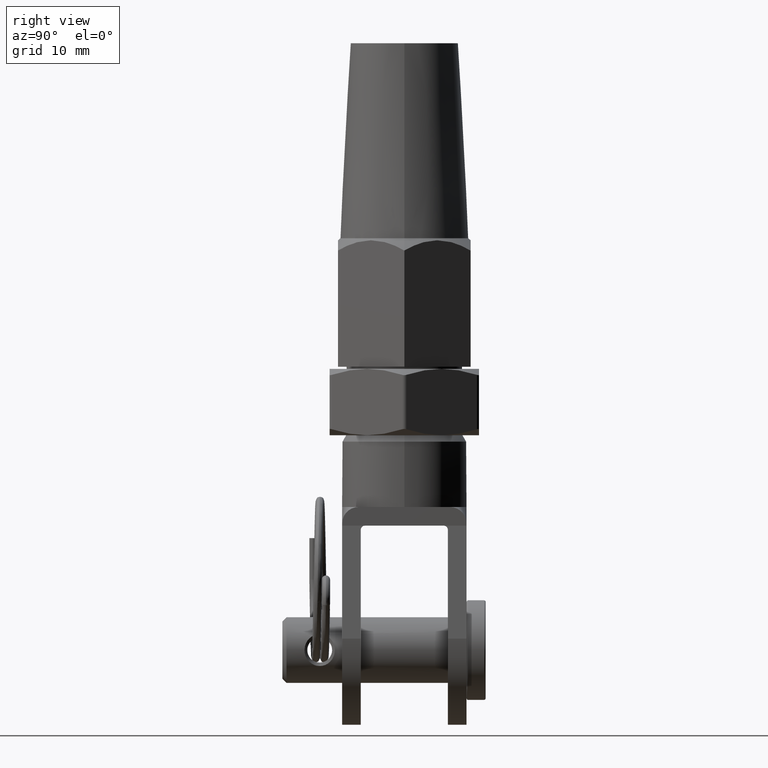
[diagram: clean part render]
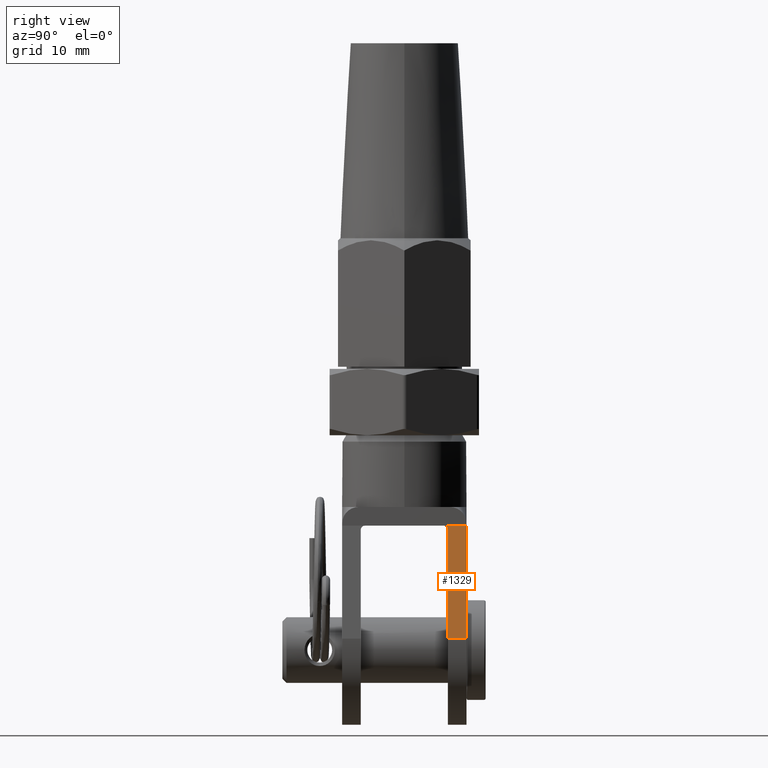
[diagram: same view with one face highlighted and labeled with its STEP entity id]
A machine part, right view. The second image highlights one B-rep face of the part: STEP entity #1329.
In plain terms, the highlighted planar face has unit normal (-0.9925, 0, -0.1225).
Its self-contained STEP definition (entity closure, byte-faithful):
#523 = EDGE_LOOP ( 'NONE', ( #5594, #14817, #13130, #23300, #11882 ) ) ;
#688 = CARTESIAN_POINT ( 'NONE',  ( 9.180365859015916300, 7.500000000000000000, -23.61713518255046300 ) ) ;
#702 = EDGE_CURVE ( 'NONE', #4618, #8502, #12405, .T. ) ;
#1054 = CARTESIAN_POINT ( 'NONE',  ( 7.500000000000000000, 5.042893218813453000, -10.00000000000000000 ) ) ;
#1329 = ADVANCED_FACE ( 'NONE', ( #18236 ), #12052, .F. ) ;
#2683 = EDGE_CURVE ( 'NONE', #15328, #17859, #11211, .T. ) ;
#3366 = VECTOR ( 'NONE', #8965, 1000.000000000000000 ) ;
#4182 = DIRECTION ( 'NONE',  ( -0.9924719847584774200, 0.0000000000000000000, -0.1224718721567065300 ) ) ;
#4402 = DIRECTION ( 'NONE',  ( -0.0000000000000000000, -1.000000000000000000, -0.0000000000000000000 ) ) ;
#4466 = LINE ( 'NONE', #6763, #5908 ) ;
#4618 = VERTEX_POINT ( 'NONE', #12995 ) ;
#4841 = CARTESIAN_POINT ( 'NONE',  ( 7.561700417763686800, 5.250000000000000000, -10.50000000000000000 ) ) ;
#5011 = CARTESIAN_POINT ( 'NONE',  ( 7.500000000000000000, 5.250000000000000000, -10.00000000000000000 ) ) ;
#5594 = ORIENTED_EDGE ( 'NONE', *, *, #2683, .T. ) ;
#5908 = VECTOR ( 'NONE', #21608, 1000.000000000000200 ) ;
#6551 = EDGE_CURVE ( 'NONE', #17859, #11166, #13748, .T. ) ;
#6763 = CARTESIAN_POINT ( 'NONE',  ( 7.500000000000000000, 7.500000000000000000, -10.00000000000000000 ) ) ;
#7282 = LINE ( 'NONE', #5011, #15962 ) ;
#8502 = VERTEX_POINT ( 'NONE', #20275 ) ;
#8965 = DIRECTION ( 'NONE',  ( -0.0000000000000000000, -1.000000000000000000, -0.0000000000000000000 ) ) ;
#9776 = DIRECTION ( 'NONE',  ( -0.1224718721567065200, 0.0000000000000000000, 0.9924719847584773100 ) ) ;
#10588 = CARTESIAN_POINT ( 'NONE',  ( 7.500000000000000000, 7.500000000000000000, -10.00000000000000000 ) ) ;
#11166 = VERTEX_POINT ( 'NONE', #15033 ) ;
#11211 = LINE ( 'NONE', #10588, #3366 ) ;
#11882 = ORIENTED_EDGE ( 'NONE', *, *, #14593, .F. ) ;
#12052 = PLANE ( 'NONE',  #17071 ) ;
#12405 = LINE ( 'NONE', #688, #18537 ) ;
#12995 = CARTESIAN_POINT ( 'NONE',  ( 9.180365859015916300, 7.500000000000000000, -23.61713518255046300 ) ) ;
#13094 = CARTESIAN_POINT ( 'NONE',  ( 7.500000000000000000, 4.750000000000000900, -10.00000000000000000 ) ) ;
#13130 = ORIENTED_EDGE ( 'NONE', *, *, #19613, .T. ) ;
#13748 =( BOUNDED_CURVE ( )  B_SPLINE_CURVE ( 3, ( #23268, #1054, #21713, #4841 ),
 .UNSPECIFIED., .F., .F. ) 
 B_SPLINE_CURVE_WITH_KNOTS ( ( 4, 4 ),
 ( 0.0000000000000000000, 1.570796326794896600 ),
 .UNSPECIFIED. ) 
 CURVE ( )  GEOMETRIC_REPRESENTATION_ITEM ( )  RATIONAL_B_SPLINE_CURVE ( ( 1.000000000000000000, 0.8047378541243649400, 0.8047378541243649400, 1.000000000000000000 ) ) 
 REPRESENTATION_ITEM ( '' )  );
#14520 = CARTESIAN_POINT ( 'NONE',  ( 7.500000000000000000, 7.500000000000000000, -10.00000000000000000 ) ) ;
#14593 = EDGE_CURVE ( 'NONE', #15328, #4618, #4466, .T. ) ;
#14817 = ORIENTED_EDGE ( 'NONE', *, *, #6551, .T. ) ;
#15033 = CARTESIAN_POINT ( 'NONE',  ( 7.561700417763686800, 5.250000000000000000, -10.50000000000000000 ) ) ;
#15273 = CARTESIAN_POINT ( 'NONE',  ( 7.500000000000000000, 7.500000000000000000, -10.00000000000000000 ) ) ;
#15328 = VERTEX_POINT ( 'NONE', #14520 ) ;
#15962 = VECTOR ( 'NONE', #17997, 1000.000000000000200 ) ;
#17071 = AXIS2_PLACEMENT_3D ( 'NONE', #15273, #4182, #9776 ) ;
#17859 = VERTEX_POINT ( 'NONE', #13094 ) ;
#17997 = DIRECTION ( 'NONE',  ( 0.1224718721567065500, 0.0000000000000000000, -0.9924719847584773100 ) ) ;
#18236 = FACE_OUTER_BOUND ( 'NONE', #523, .T. ) ;
#18537 = VECTOR ( 'NONE', #4402, 1000.000000000000000 ) ;
#19613 = EDGE_CURVE ( 'NONE', #11166, #8502, #7282, .T. ) ;
#20275 = CARTESIAN_POINT ( 'NONE',  ( 9.180365859015916300, 5.250000000000000000, -23.61713518255046300 ) ) ;
#21608 = DIRECTION ( 'NONE',  ( 0.1224718721567065500, 0.0000000000000000000, -0.9924719847584773100 ) ) ;
#21713 = CARTESIAN_POINT ( 'NONE',  ( 7.525557149841804800, 5.250000000000000900, -10.20710678118654800 ) ) ;
#23268 = CARTESIAN_POINT ( 'NONE',  ( 7.500000000000000000, 4.750000000000000900, -10.00000000000000000 ) ) ;
#23300 = ORIENTED_EDGE ( 'NONE', *, *, #702, .F. ) ;